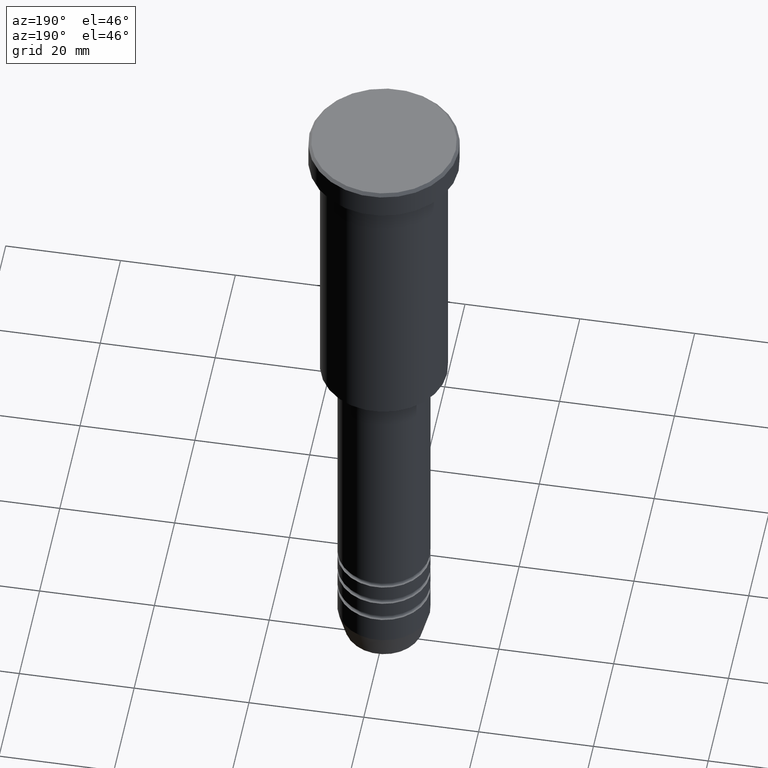
[diagram: clean part render]
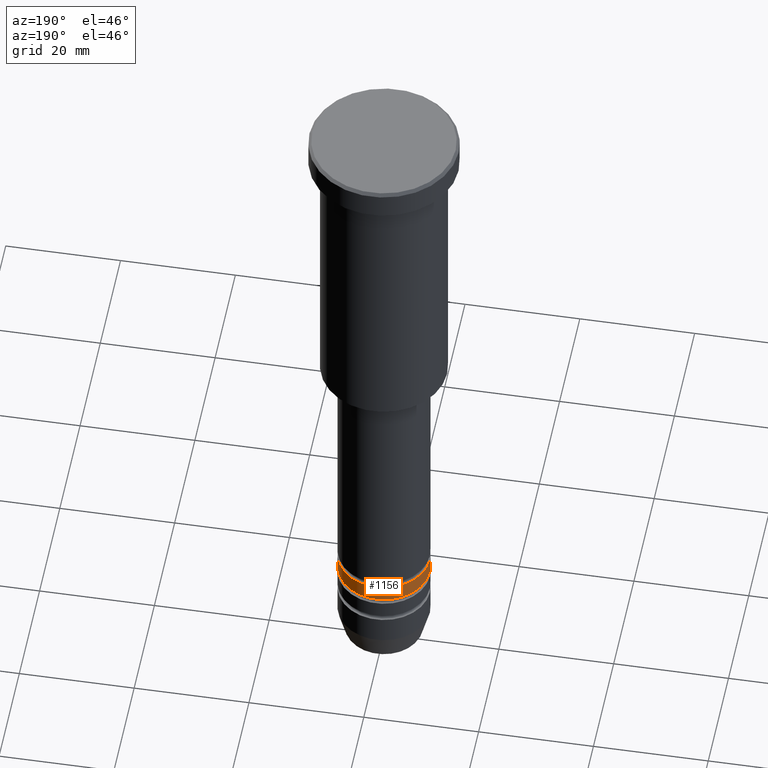
[diagram: same view with one face highlighted and labeled with its STEP entity id]
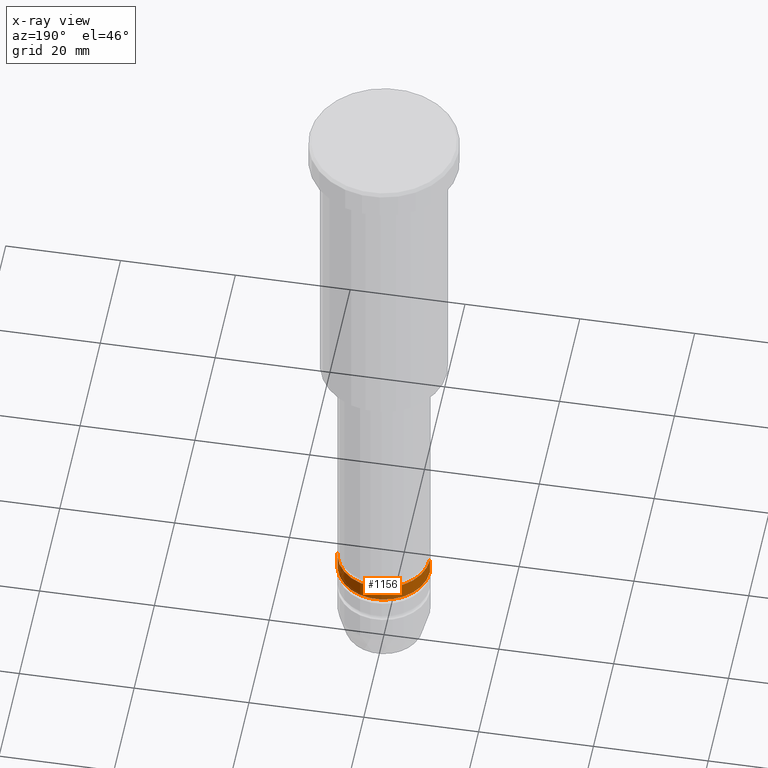
[diagram: x-ray of the same camera — body ghosted, the highlighted face saturated]
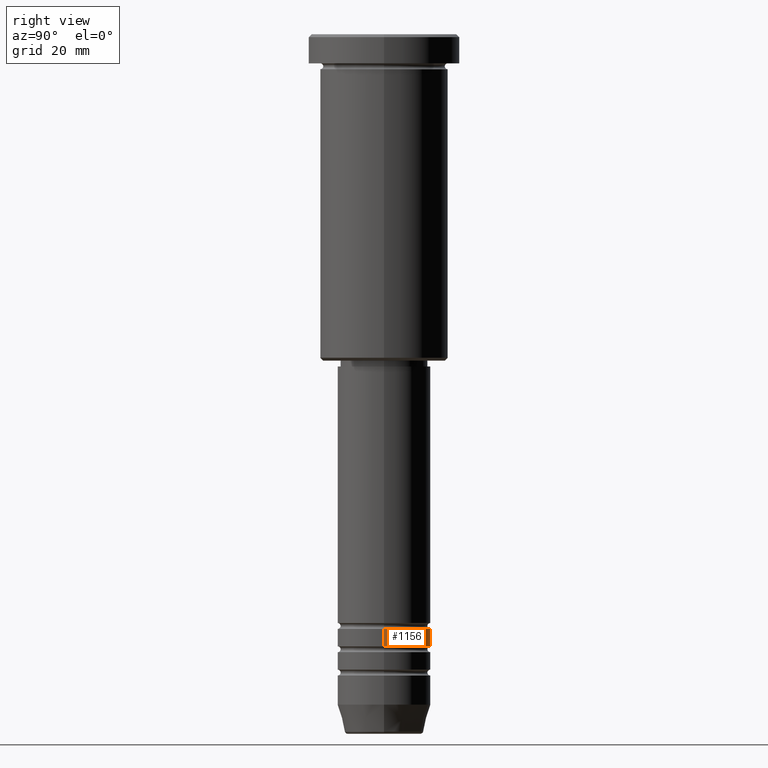
[diagram: same view with one face highlighted and labeled with its STEP entity id]
A machine part, auxiliary view. The second image highlights one B-rep face of the part: STEP entity #1156.
The next image is the same camera in x-ray: the body ghosted, the highlighted face saturated — about 0% of this face is hidden behind the body in this view.
A second angle (right view) of the same face is appended — the face is thin or edge-on in the first view.
In plain terms, the highlighted cylindrical surface (partial cylindrical patch) has radius 8 mm, axis along (-0, -0, 1).
Its self-contained STEP definition (entity closure, byte-faithful):
#9 = AXIS2_PLACEMENT_3D ( 'NONE', #42, #65, #238 ) ;
#19 = VERTEX_POINT ( 'NONE', #278 ) ;
#42 = CARTESIAN_POINT ( 'NONE',  ( 0.000000000000000000, 0.000000000000000000, 0.000000000000000000 ) ) ;
#65 = DIRECTION ( 'NONE',  ( -0.000000000000000000, -0.000000000000000000, 1.000000000000000000 ) ) ;
#93 = EDGE_CURVE ( 'NONE', #829, #19, #439, .T. ) ;
#95 = VECTOR ( 'NONE', #784, 1000.000000000000000 ) ;
#156 = VERTEX_POINT ( 'NONE', #262 ) ;
#157 = CYLINDRICAL_SURFACE ( 'NONE', #9, 8.000000000000001776 ) ;
#236 = AXIS2_PLACEMENT_3D ( 'NONE', #410, #764, #1123 ) ;
#238 = DIRECTION ( 'NONE',  ( 1.000000000000000000, 0.000000000000000000, 0.000000000000000000 ) ) ;
#243 = DIRECTION ( 'NONE',  ( 1.000000000000000000, 0.000000000000000000, 0.000000000000000000 ) ) ;
#252 = ORIENTED_EDGE ( 'NONE', *, *, #1182, .T. ) ;
#262 = CARTESIAN_POINT ( 'NONE',  ( -8.000000000000000000, 9.797174393178827630E-16, -101.9999999999999858 ) ) ;
#274 = ORIENTED_EDGE ( 'NONE', *, *, #1077, .T. ) ;
#278 = CARTESIAN_POINT ( 'NONE',  ( 8.000000000000000000, 0.000000000000000000, -101.9999999999999858 ) ) ;
#337 = ORIENTED_EDGE ( 'NONE', *, *, #981, .F. ) ;
#410 = CARTESIAN_POINT ( 'NONE',  ( 0.000000000000000000, 0.000000000000000000, -104.9999999999999858 ) ) ;
#439 = LINE ( 'NONE', #1143, #95 ) ;
#442 = CARTESIAN_POINT ( 'NONE',  ( 0.000000000000000000, 0.000000000000000000, -101.9999999999999858 ) ) ;
#482 = CIRCLE ( 'NONE', #1061, 8.000000000000000000 ) ;
#497 = ORIENTED_EDGE ( 'NONE', *, *, #93, .F. ) ;
#506 = DIRECTION ( 'NONE',  ( -0.000000000000000000, -0.000000000000000000, 1.000000000000000000 ) ) ;
#513 = LINE ( 'NONE', #994, #687 ) ;
#538 = CARTESIAN_POINT ( 'NONE',  ( 8.000000000000003553, 0.000000000000000000, -104.9999999999999858 ) ) ;
#615 = VERTEX_POINT ( 'NONE', #1034 ) ;
#687 = VECTOR ( 'NONE', #506, 1000.000000000000000 ) ;
#689 = EDGE_LOOP ( 'NONE', ( #274, #252, #337, #497 ) ) ;
#710 = DIRECTION ( 'NONE',  ( -0.000000000000000000, -0.000000000000000000, 1.000000000000000000 ) ) ;
#753 = CIRCLE ( 'NONE', #236, 8.000000000000003553 ) ;
#764 = DIRECTION ( 'NONE',  ( -0.000000000000000000, -0.000000000000000000, 1.000000000000000000 ) ) ;
#784 = DIRECTION ( 'NONE',  ( -0.000000000000000000, -0.000000000000000000, 1.000000000000000000 ) ) ;
#829 = VERTEX_POINT ( 'NONE', #538 ) ;
#874 = FACE_OUTER_BOUND ( 'NONE', #689, .T. ) ;
#981 = EDGE_CURVE ( 'NONE', #19, #156, #482, .T. ) ;
#994 = CARTESIAN_POINT ( 'NONE',  ( -8.000000000000001776, 9.797174393178827630E-16, 0.000000000000000000 ) ) ;
#1034 = CARTESIAN_POINT ( 'NONE',  ( -8.000000000000003553, 9.797174393178829602E-16, -104.9999999999999858 ) ) ;
#1061 = AXIS2_PLACEMENT_3D ( 'NONE', #442, #710, #243 ) ;
#1077 = EDGE_CURVE ( 'NONE', #829, #615, #753, .T. ) ;
#1123 = DIRECTION ( 'NONE',  ( 1.000000000000000000, 0.000000000000000000, 0.000000000000000000 ) ) ;
#1143 = CARTESIAN_POINT ( 'NONE',  ( 8.000000000000001776, 0.000000000000000000, 0.000000000000000000 ) ) ;
#1156 = ADVANCED_FACE ( 'NONE', ( #874 ), #157, .T. ) ;
#1182 = EDGE_CURVE ( 'NONE', #615, #156, #513, .T. ) ;